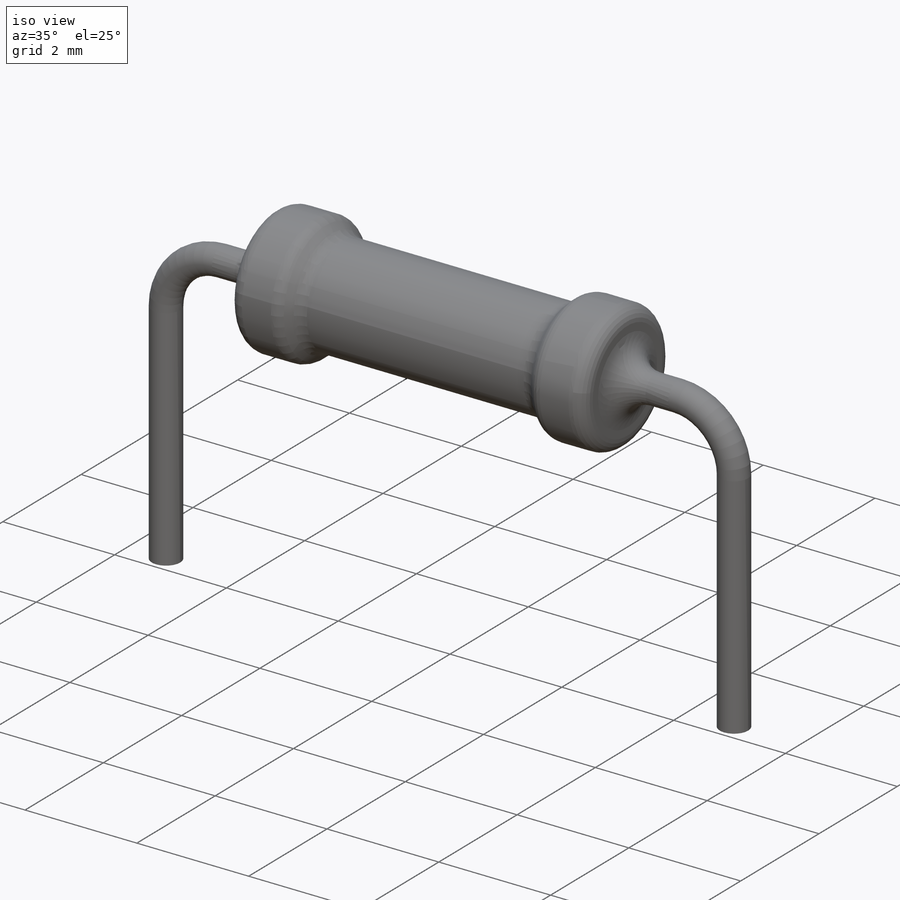
[diagram: iso view]
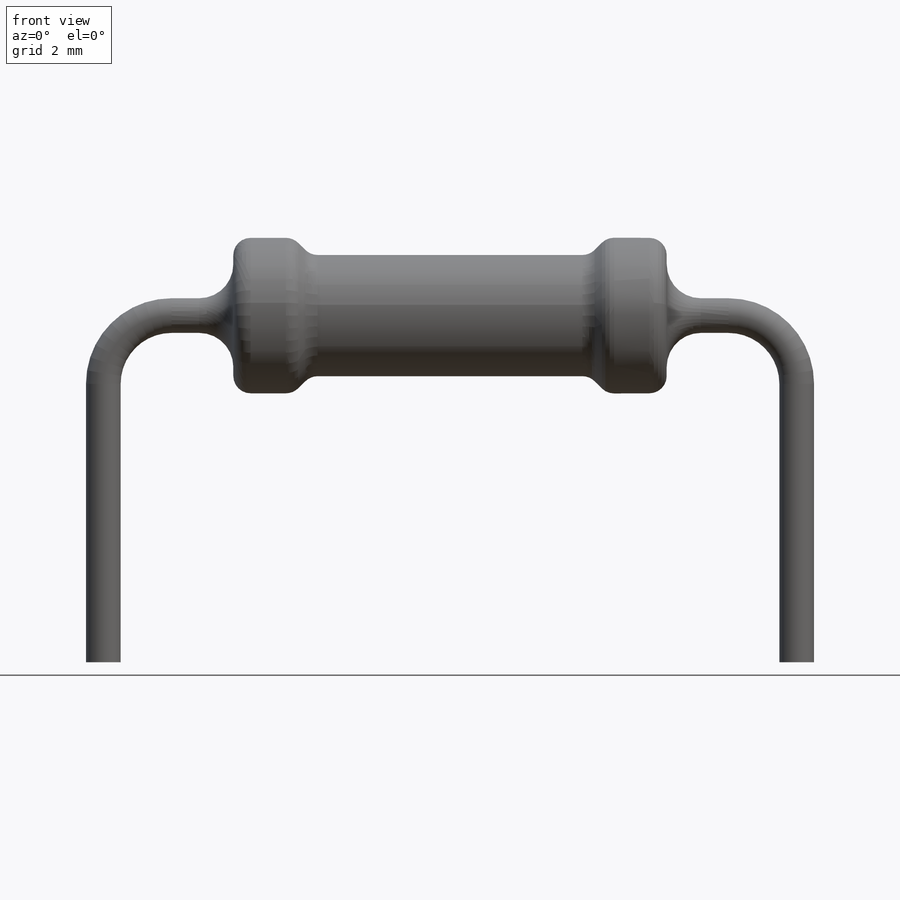
[diagram: front view]
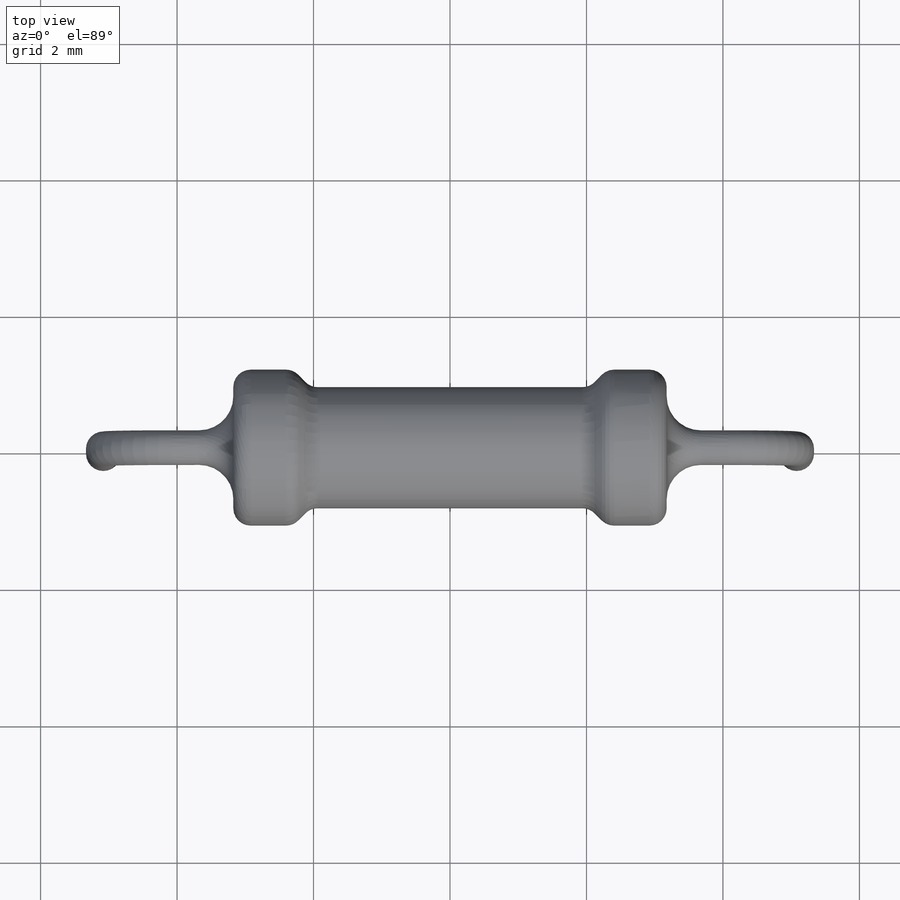
[diagram: top view]
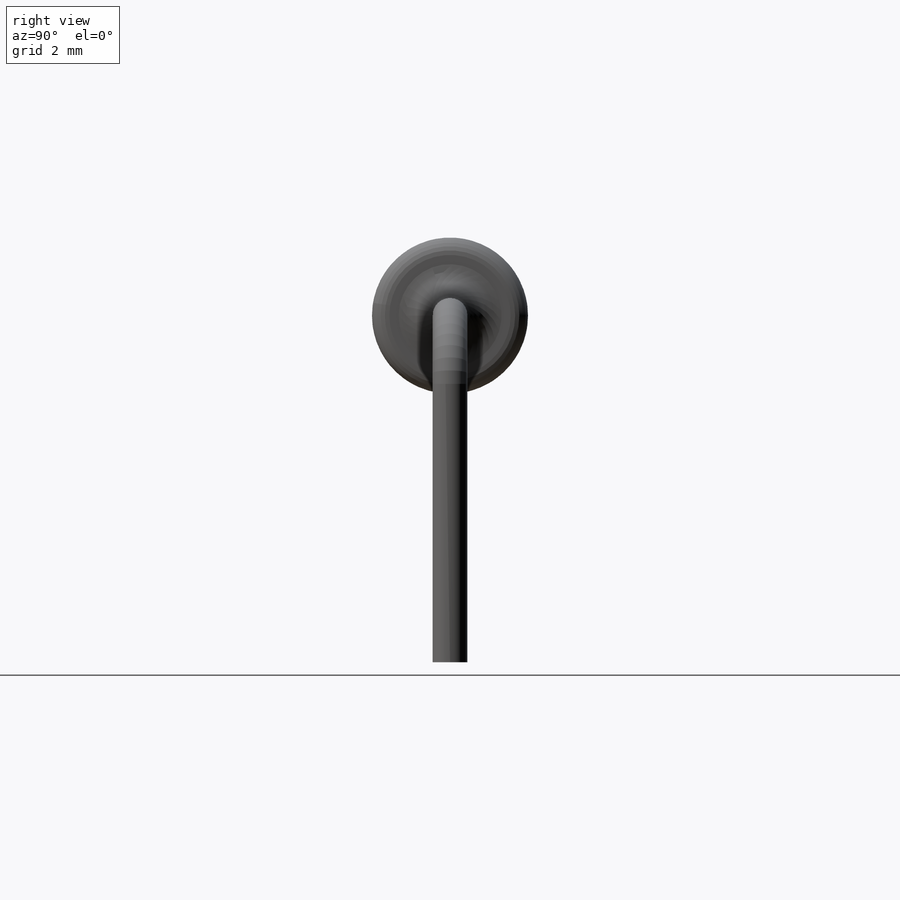
[diagram: right view]
SOLIDWORKS PART (.sldprt)
format: sldprt  version: not decoded by parser v0  size: 240,128 bytes
history: native  units: mm
features: sketch x3, material x1, revolve x1, sweep x1, mirror x1, fillet x1 (+13 scaffold rows collapsed)
feature tree (21):
  scaffold x13  (default folders/planes/origin — collapsed)
  material  "Material <not specified>"
  sketch  "Sketch1"  dims[c1.D1=~3.33074mm c1.D2=0.508mm c1.D3=0.127mm c2.D2=0.254mm c2.D3=0.254mm c2.D1=0.889mm c2.D4=3.175mm c3.D1=0.889mm c3.D3=0.254mm c3.D5=~0.066734mm c4.D3=0.254mm c4.D5=~0.14879mm c4.D6=~0.10521mm c5.D6=45.0deg c5.D7=~0.51696mm c5.D1=90.0deg]
  revolve  "Revolve1"  Angle=360deg
  sketch  "Sketch2"  dims[D3=1.0mm D1=5.08mm D2=5.08mm]
  sketch  "Sketch3"  dims[D1=0.508mm]
  sweep  "Sweep1"
  mirror  "Mirror1"
  fillet  "Fillet1"  Radius=0.5mm
decode coverage: 5 of 7 modeling features carry decoded parameters
note: ~ marks probable driven/reference dimensions
note: suppression state not decoded; provenance and decode notes live in map.json
